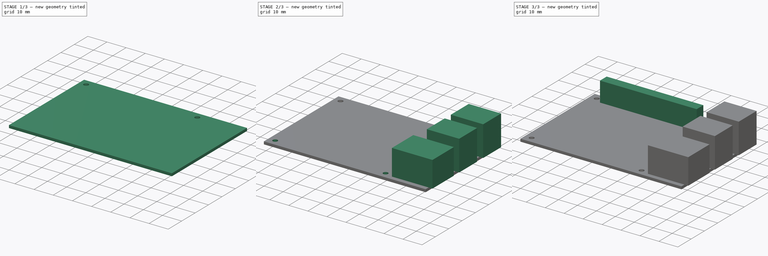
[diagram: build sequence overview — one tinted view per stage of 3, left to right]
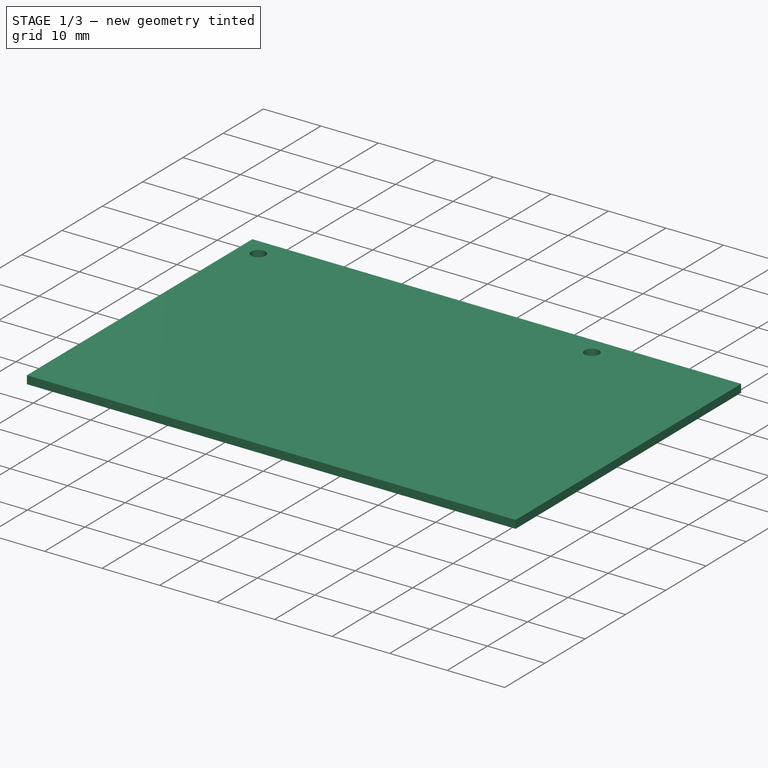
[diagram: stage 1 of 3 — iso view after this stage's code; geometry added in this stage tinted green]
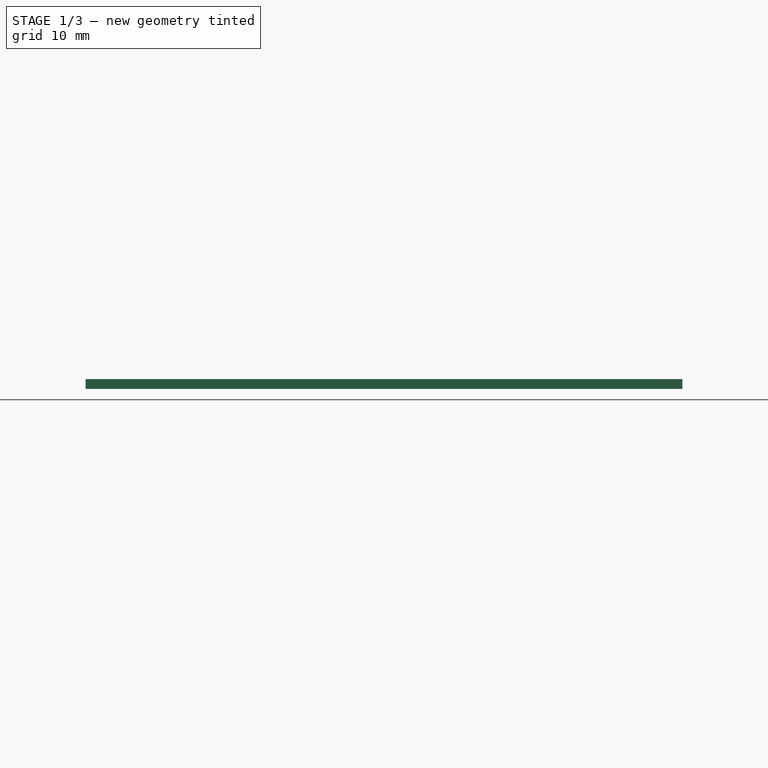
[diagram: stage 1 of 3 — front view after this stage's code; geometry added in this stage tinted green]
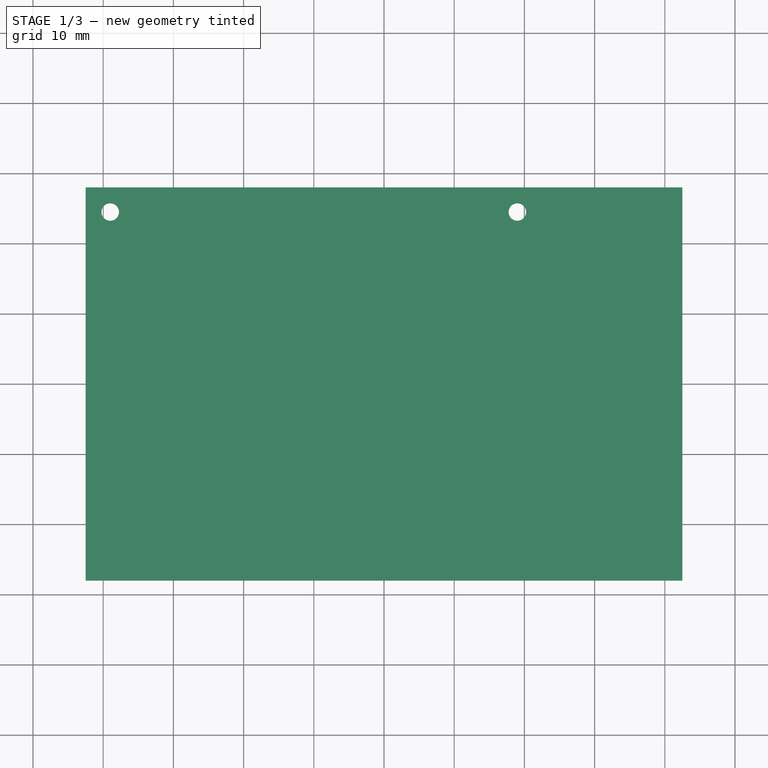
[diagram: stage 1 of 3 — top view after this stage's code; geometry added in this stage tinted green]
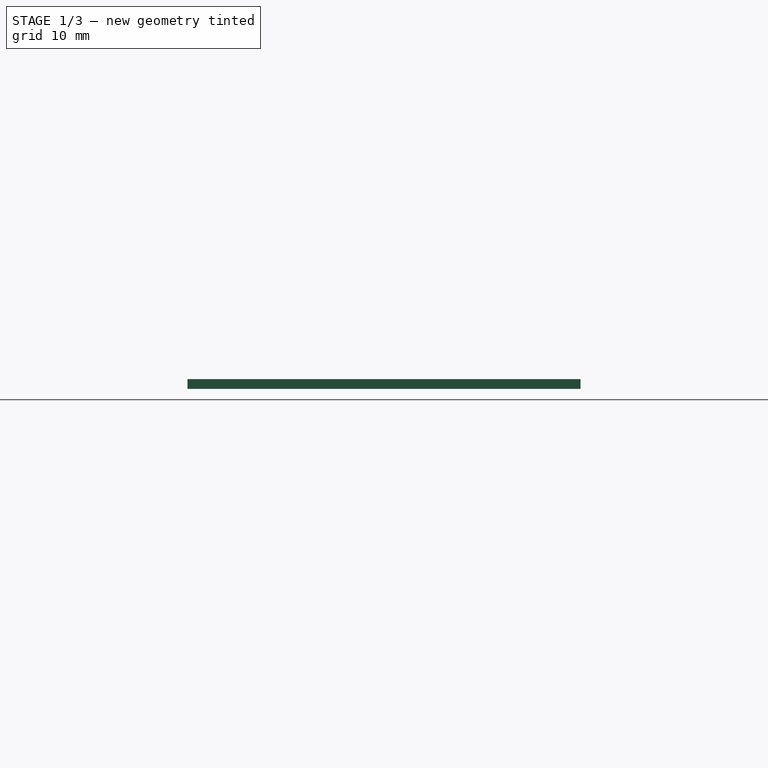
[diagram: stage 1 of 3 — right view after this stage's code; geometry added in this stage tinted green]
FCSTD DOCUMENT  (FreeCAD 0.15R4671 (Git))
Label: rpi2
License: All rights reserved
LicenseURL: http://fr.wikipedia.org/wiki/<copyright redacted>
objects: Sketcher::SketchObject×6, PartDesign::Pad×5, PartDesign::Pocket×1, PartDesign::Mirrored×1
note: 19 computed .brp shape members not serialized (recipe doc carries the construction recipe); baked Part::Feature solids carry a one-line shape summary decoded from their .brp

FEATURE [Sketcher::SketchObject] Sketch
  sketch-geometry (4):
    g0: LineSegment StartX=-42.5 StartY=28 StartZ=0 EndX=42.5 EndY=28 EndZ=0
    g1: LineSegment StartX=42.5 StartY=28 StartZ=0 EndX=42.5 EndY=-28 EndZ=0
    g2: LineSegment StartX=42.5 StartY=-28 StartZ=0 EndX=-42.5 EndY=-28 EndZ=0
    g3: LineSegment StartX=-42.5 StartY=-28 StartZ=0 EndX=-42.5 EndY=28 EndZ=0
  constraints (11):
    c: Coincident(g0,g1)
    c: Coincident(g1,g2)
    c: Coincident(g2,g3)
    c: Coincident(g3,g0)
    c: Horizontal(g0)
    c: Horizontal(g2)
    c: Vertical(g1)
    c: Vertical(g3)
    c: Symmetric(g0,g1,g-1)
    c: Distance(g3) = 56
    c: Distance(g0) = 85
FEATURE [PartDesign::Pad] Pad
  Length = 1.4
  Length2 = 100
  Sketch = -> Sketch
  Type = 0
FEATURE [Sketcher::SketchObject] Sketch001
  ExternalGeometry = -> [Pad]
  Placement = pos=(0,0,1.4) rot=(0,0,1;0rad)
  Support = -> Pad [Face6]
  sketch-geometry (2):
    g0: Circle CenterX=-39 CenterY=24.5 CenterZ=0 NormalX=0 NormalY=0 NormalZ=1 Radius=1.25
    g1: Circle CenterX=19 CenterY=24.5 CenterZ=0 NormalX=0 NormalY=0 NormalZ=1 Radius=1.25
  constraints (6):
    c: DistanceX(g0,g-4) = -3.5
    c: DistanceY(g0,g-4) = 3.5
    c: DistanceX(g1,g0) = -58
    c: DistanceY(g0,g1) = 0
    c: Radius(g0) = 1.25
    c: Equal(g0,g1)
FEATURE [PartDesign::Pocket] Pocket
  Length = 5
  Sketch = -> Sketch001
  Type = 1
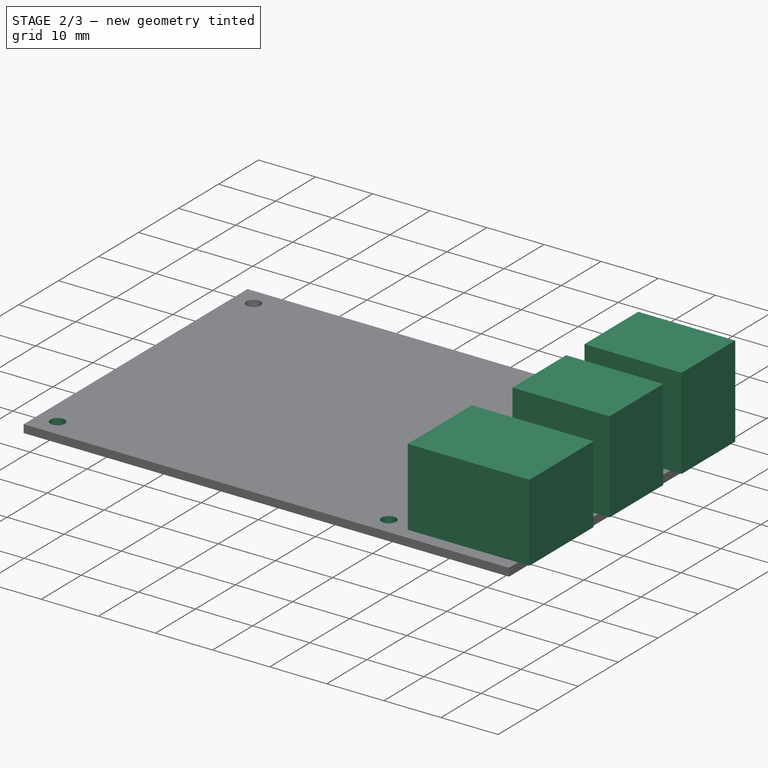
[diagram: stage 2 of 3 — iso view after this stage's code; geometry added in this stage tinted green]
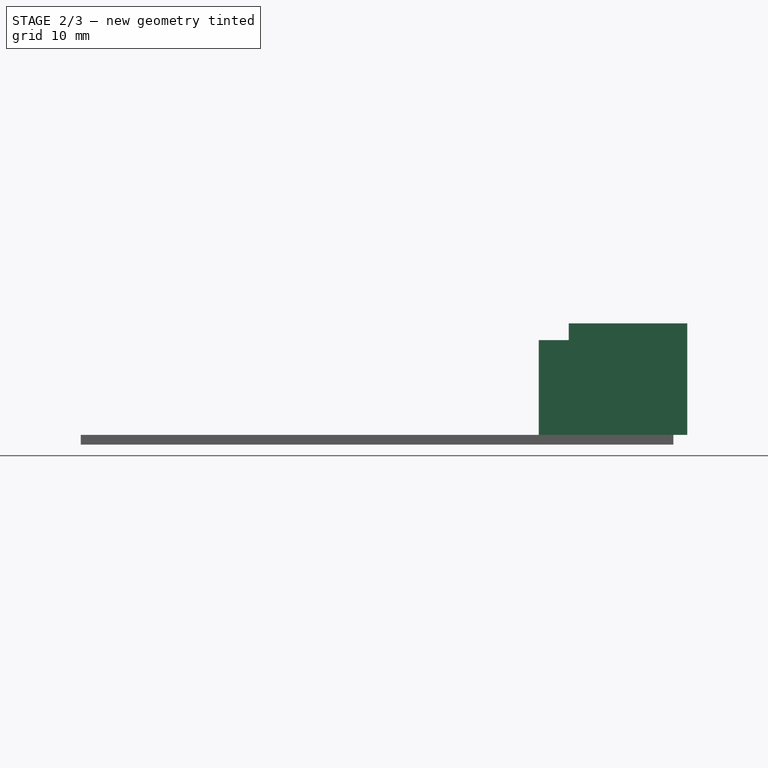
[diagram: stage 2 of 3 — front view after this stage's code; geometry added in this stage tinted green]
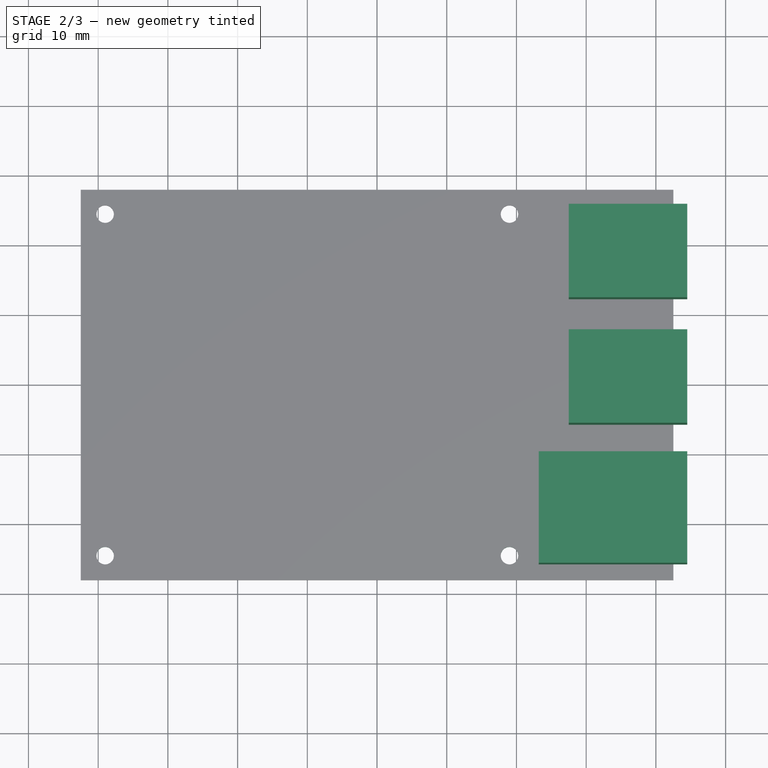
[diagram: stage 2 of 3 — top view after this stage's code; geometry added in this stage tinted green]
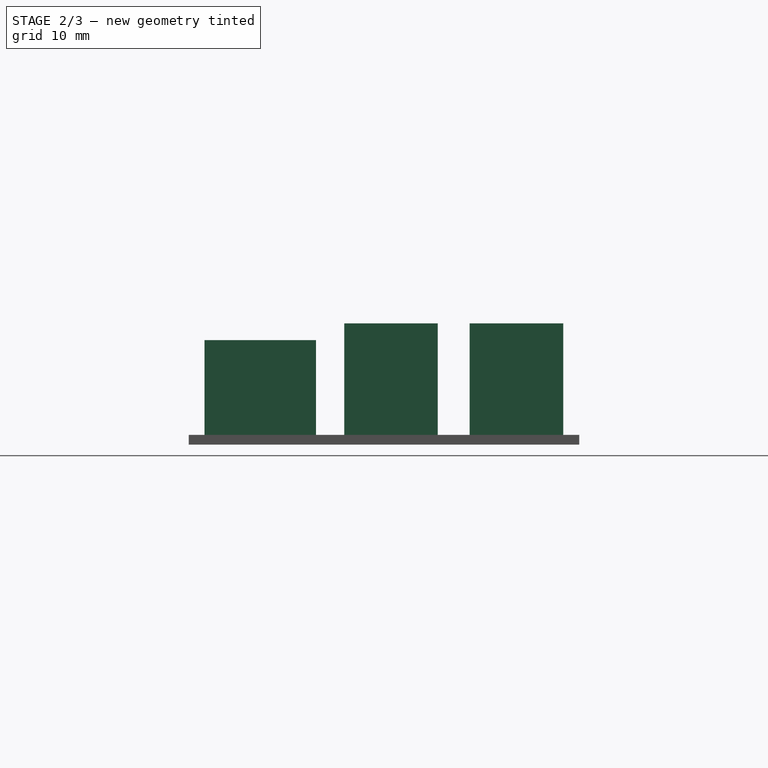
[diagram: stage 2 of 3 — right view after this stage's code; geometry added in this stage tinted green]
FEATURE [PartDesign::Mirrored] Mirrored
  MirrorPlane = -> Sketch001 [H_Axis]
  Originals = -> [Pocket]
FEATURE [Sketcher::SketchObject] Sketch002  label="USB_Sketch002"
  ExternalGeometry = -> [Mirrored]
  Placement = pos=(0,0,1.4) rot=(0,0,1;0rad)
  Support = -> Mirrored [Face5]
  sketch-geometry (10):
    g0: LineSegment StartX=27.5 StartY=25.71 StartZ=0 EndX=44.5 EndY=25.71 EndZ=0
    g1: LineSegment StartX=44.5 StartY=25.71 StartZ=0 EndX=44.5 EndY=12.29 EndZ=0
    g2: LineSegment StartX=44.5 StartY=12.29 StartZ=0 EndX=27.5 EndY=12.29 EndZ=0
    g3: LineSegment StartX=27.5 StartY=12.29 StartZ=0 EndX=27.5 EndY=25.71 EndZ=0
    g4: LineSegment StartX=27.5 StartY=7.71 StartZ=0 EndX=44.5 EndY=7.71 EndZ=0
    g5: LineSegment StartX=44.5 StartY=7.71 StartZ=0 EndX=44.5 EndY=-5.71 EndZ=0
    g6: LineSegment StartX=44.5 StartY=-5.71 StartZ=0 EndX=27.5 EndY=-5.71 EndZ=0
    g7: LineSegment StartX=27.5 StartY=-5.71 StartZ=0 EndX=27.5 EndY=7.71 EndZ=0
    g8: LineSegment [constr] StartX=44.5 StartY=19 StartZ=0 EndX=27.5 EndY=19 EndZ=0
    g9: LineSegment [constr] StartX=44.5 StartY=1 StartZ=0 EndX=27.5 EndY=1 EndZ=0
  constraints (32):
    c: Coincident(g0,g1)
    c: Coincident(g1,g2)
    c: Coincident(g2,g3)
    c: Coincident(g3,g0)
    c: Horizontal(g0)
    c: Horizontal(g2)
    c: Vertical(g1)
    c: Vertical(g3)
    c: Coincident(g4,g5)
    c: Coincident(g5,g6)
    c: Coincident(g6,g7)
    c: Coincident(g7,g4)
    c: Horizontal(g4)
    c: Horizontal(g6)
    c: Vertical(g5)
    c: Vertical(g7)
    c: DistanceX(g2,g4) = 0
    c: Equal(g2,g4)
    c: Equal(g3,g7)
    c: Distance(g0) = 17
    c: Distance(g3) = 13.42
    c: PointOnObject(g8,g1)
    c: Horizontal(g8)
    c: Symmetric(g0,g1,g8)
    c: DistanceY(g-3,g8) = 47
    c: PointOnObject(g9,g5)
    c: Horizontal(g9)
    c: Symmetric(g4,g5,g9)
    c: DistanceY(g9,g-3) = -29
    c: DistanceX(g5,g-3) = -2
    c: PointOnObject(g8,g3)
    c: PointOnObject(g9,g7)
FEATURE [PartDesign::Pad] Pad001  label="USB_Pad001"
  Length = 16
  Length2 = 100
  Sketch = -> Sketch002
  Type = 0
FEATURE [Sketcher::SketchObject] Sketch003  label="Ethernet_Sketch003"
  ExternalGeometry = -> [Pad001]
  Placement = pos=(0,0,1.4) rot=(0,0,1;0rad)
  Support = -> Pad001 [Face5]
  sketch-geometry (5):
    g0: LineSegment StartX=23.2 StartY=-9.75 StartZ=0 EndX=44.5 EndY=-9.75 EndZ=0
    g1: LineSegment StartX=44.5 StartY=-9.75 StartZ=0 EndX=44.5 EndY=-25.75 EndZ=0
    g2: LineSegment StartX=44.5 StartY=-25.75 StartZ=0 EndX=23.2 EndY=-25.75 EndZ=0
    g3: LineSegment StartX=23.2 StartY=-25.75 StartZ=0 EndX=23.2 EndY=-9.75 EndZ=0
    g4: LineSegment [constr] StartX=23.2 StartY=-17.75 StartZ=0 EndX=44.5 EndY=-17.75 EndZ=0
  constraints (16):
    c: Coincident(g0,g1)
    c: Coincident(g1,g2)
    c: Coincident(g2,g3)
    c: Coincident(g3,g0)
    c: Horizontal(g0)
    c: Horizontal(g2)
    c: Vertical(g1)
    c: Vertical(g3)
    c: Distance(g1) = 16
    c: Distance(g0) = 21.3
    c: PointOnObject(g4,g3)
    c: PointOnObject(g4,g1)
    c: Horizontal(g4)
    c: Symmetric(g0,g1,g4)
    c: DistanceY(g4,g-3) = -10.25
    c: DistanceX(g-3,g1) = 2
FEATURE [PartDesign::Pad] Pad002  label="Ethernet_Pad002"
  Length = 13.6
  Length2 = 100
  Sketch = -> Sketch003
  Type = 0
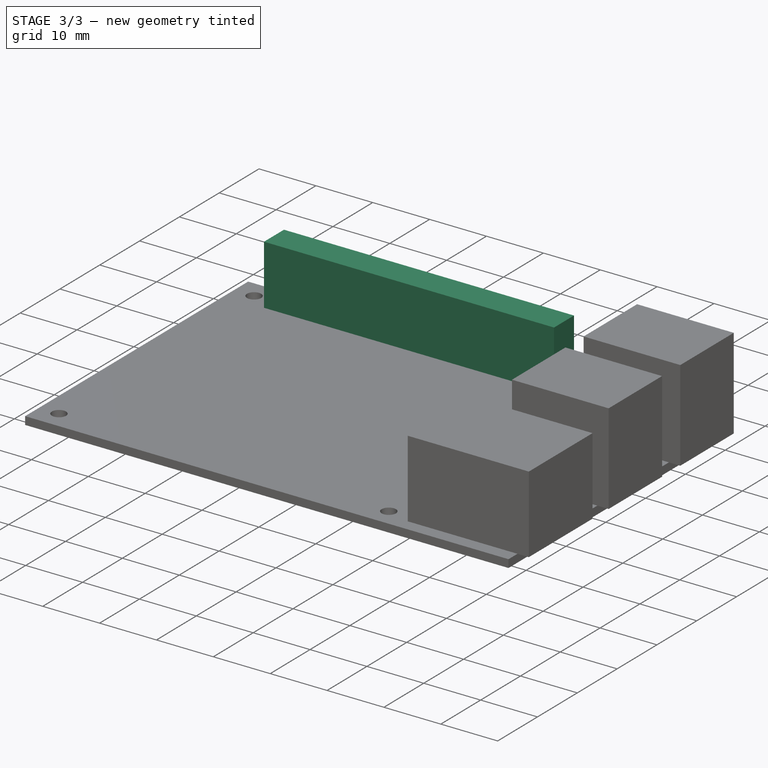
[diagram: stage 3 of 3 — iso view after this stage's code; geometry added in this stage tinted green]
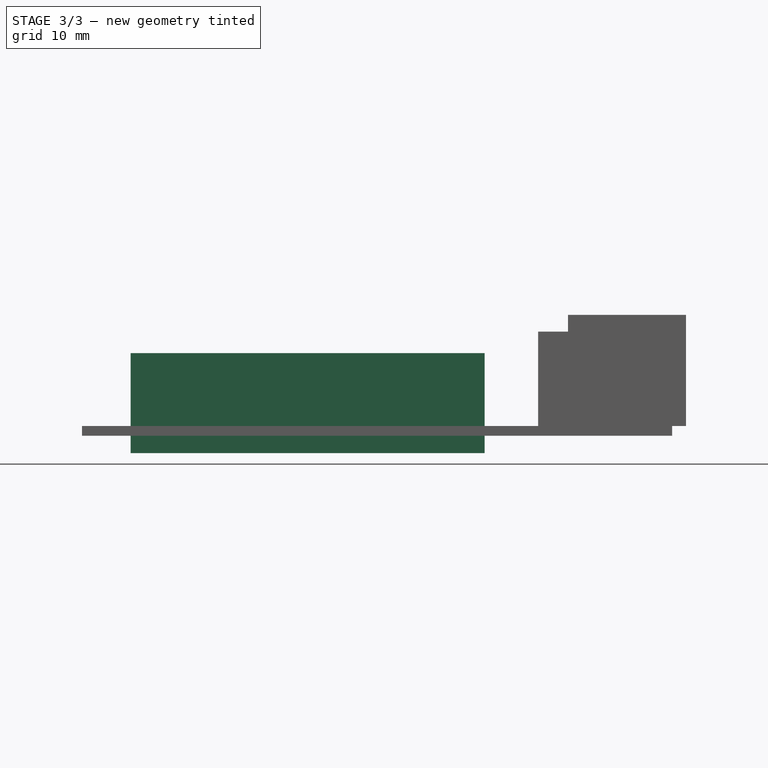
[diagram: stage 3 of 3 — front view after this stage's code; geometry added in this stage tinted green]
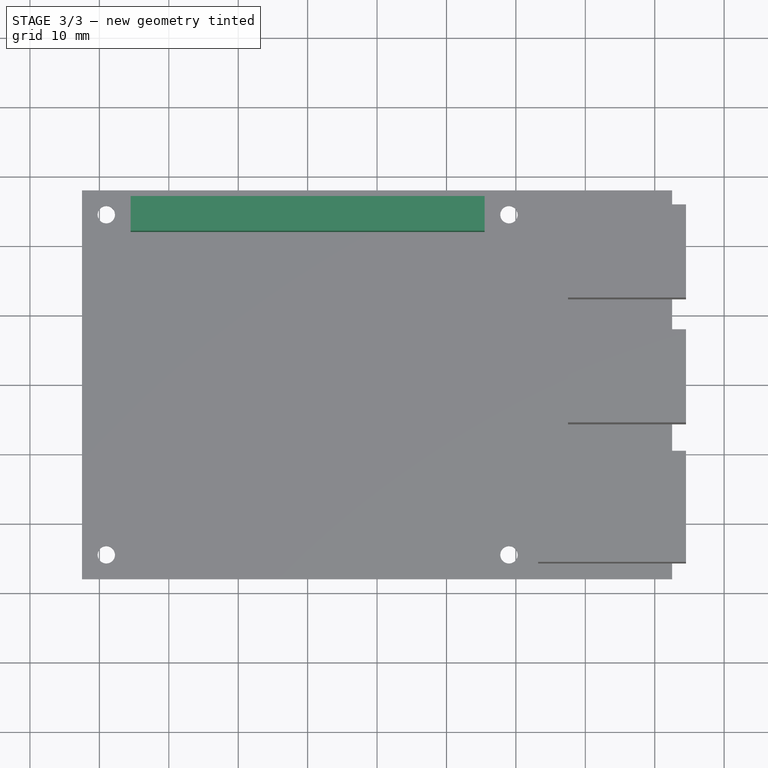
[diagram: stage 3 of 3 — top view after this stage's code; geometry added in this stage tinted green]
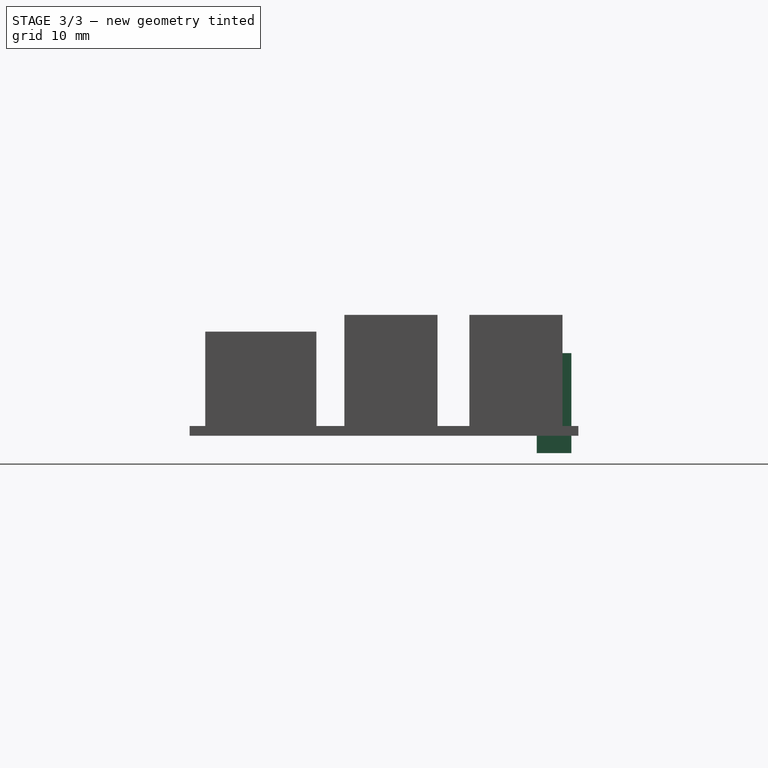
[diagram: stage 3 of 3 — right view after this stage's code; geometry added in this stage tinted green]
FEATURE [Sketcher::SketchObject] Sketch004  label="Pin_Sketch004"
  ExternalGeometry = -> [Pad002]
  Placement = pos=(0,0,1.4) rot=(0,0,1;0rad)
  Support = -> Pad002 [Face5]
  sketch-geometry (6):
    g0: LineSegment StartX=-35.5 StartY=27 StartZ=0 EndX=15.5 EndY=27 EndZ=0
    g1: LineSegment StartX=15.5 StartY=27 StartZ=0 EndX=15.5 EndY=22 EndZ=0
    g2: LineSegment StartX=15.5 StartY=22 StartZ=0 EndX=-35.5 EndY=22 EndZ=0
    g3: LineSegment StartX=-35.5 StartY=22 StartZ=0 EndX=-35.5 EndY=27 EndZ=0
    g4: LineSegment [constr] StartX=-10 StartY=27 StartZ=0 EndX=-10 EndY=24.5 EndZ=0
    g5: LineSegment [constr] StartX=-10 StartY=24.5 StartZ=0 EndX=-10 EndY=22 EndZ=0
  constraints (18):
    c: Coincident(g0,g1)
    c: Coincident(g1,g2)
    c: Coincident(g2,g3)
    c: Coincident(g3,g0)
    c: Horizontal(g0)
    c: Horizontal(g2)
    c: Vertical(g1)
    c: Vertical(g3)
    c: Distance(g0) = 51
    c: Distance(g3) = 5
    c: PointOnObject(g4,g0)
    c: Vertical(g4)
    c: Symmetric(g0,g0,g4)
    c: Coincident(g5,g4)
    c: Vertical(g5)
    c: Symmetric(g4,g5,g4)
    c: PointOnObject(g5,g2)
    c: Symmetric(g-4,g-3,g4)
FEATURE [PartDesign::Pad] Pad003  label="Pin_Pad003"
  Length = 10.5
  Length2 = 100
  Sketch = -> Sketch004
  Type = 0
FEATURE [Sketcher::SketchObject] Sketch005  label="pin_bottum_Sketch005"
  ExternalGeometry = -> [Pad003]
  Placement = pos=(0,0,0) rot=(1,0,0;3.14159rad)
  Support = -> Pad003 [Face4]
  sketch-geometry (4):
    g0: LineSegment StartX=15.5 StartY=-27 StartZ=0 EndX=-35.5 EndY=-27 EndZ=0
    g1: LineSegment StartX=-35.5 StartY=-27 StartZ=0 EndX=-35.5 EndY=-22 EndZ=0
    g2: LineSegment StartX=-35.5 StartY=-22 StartZ=0 EndX=15.5 EndY=-22 EndZ=0
    g3: LineSegment StartX=15.5 StartY=-22 StartZ=0 EndX=15.5 EndY=-27 EndZ=0
  constraints (11):
    c: Coincident(g0,g1)
    c: Coincident(g1,g2)
    c: Coincident(g2,g3)
    c: Coincident(g3,g0)
    c: Horizontal(g0)
    c: Horizontal(g2)
    c: Vertical(g1)
    c: Vertical(g3)
    c: Coincident(g0,g-4)
    c: Coincident(g2,g-4)
    c: Coincident(g0,g-3)
FEATURE [PartDesign::Pad] Pad004
  Length = 2.5
  Length2 = 100
  Sketch = -> Sketch005
  Type = 0
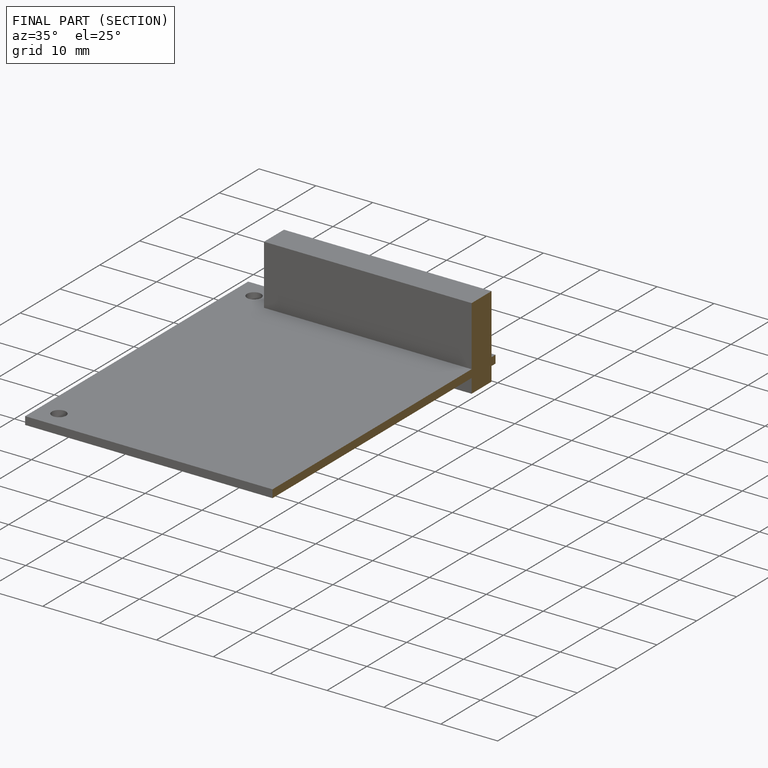
[diagram: finished part — half-section view (interior)]
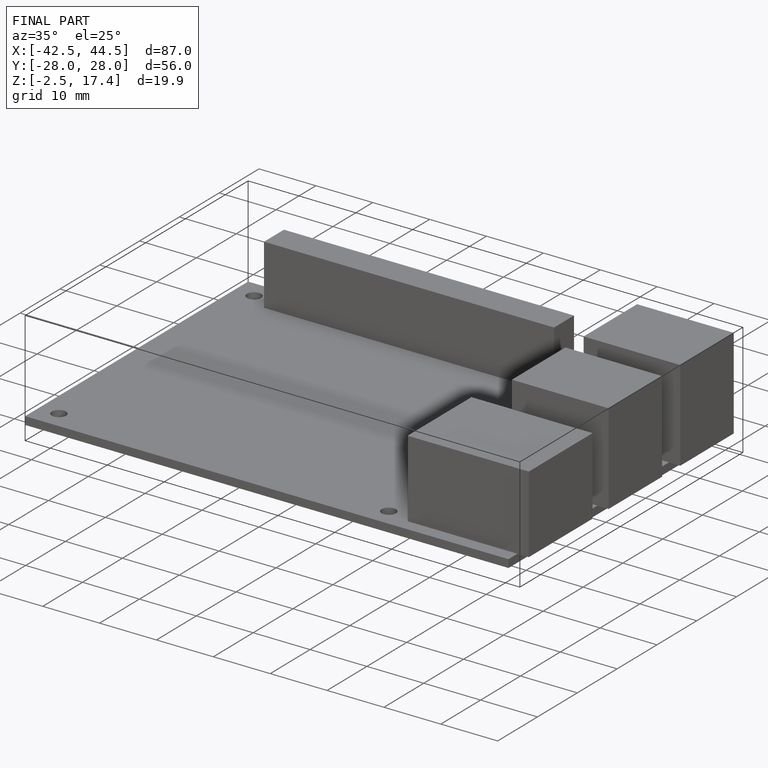
[diagram: finished part — iso view with bounding-box wireframe]
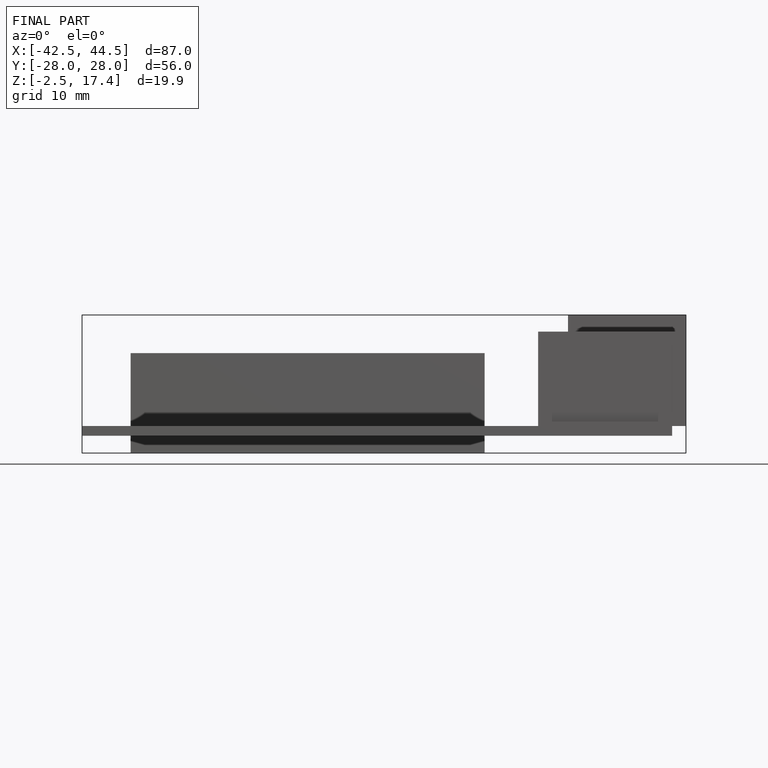
[diagram: finished part — front view with bounding-box wireframe]
